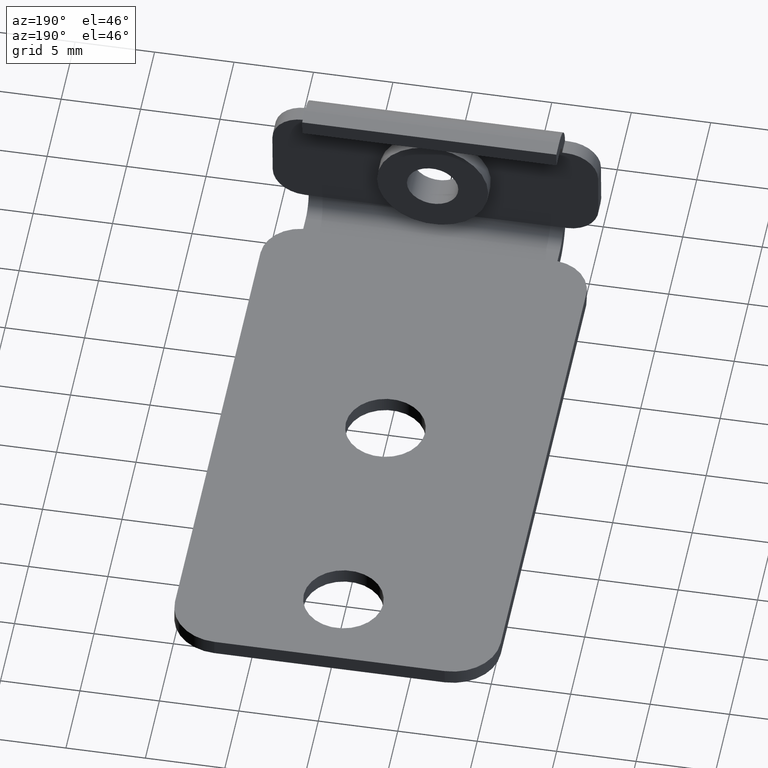
[diagram: clean part render]
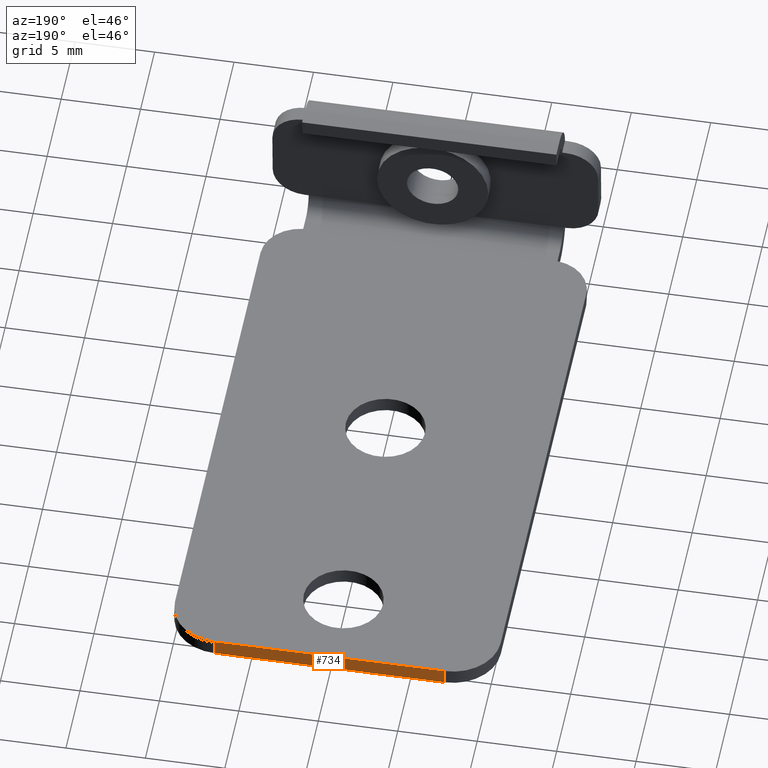
[diagram: same view with one face highlighted and labeled with its STEP entity id]
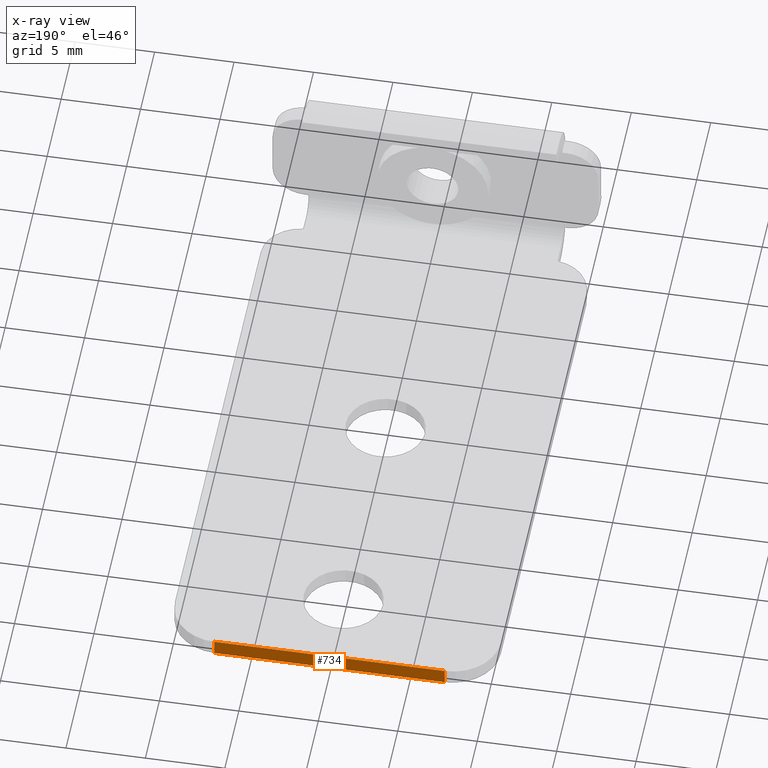
[diagram: x-ray of the same camera — body ghosted, the highlighted face saturated]
A machine part, auxiliary view. The second image highlights one B-rep face of the part: STEP entity #734.
The next image is the same camera in x-ray: the body ghosted, the highlighted face saturated — about 0% of this face is hidden behind the body in this view.
In plain terms, the highlighted planar face has unit normal (0, 1, 0).
Its self-contained STEP definition (entity closure, byte-faithful):
#45=PLANE('',#832);
#86=FACE_OUTER_BOUND('',#132,.T.);
#132=EDGE_LOOP('',(#656,#657,#658,#659));
#191=LINE('',#1224,#259);
#202=LINE('',#1263,#270);
#203=LINE('',#1266,#271);
#204=LINE('',#1267,#272);
#259=VECTOR('',#1002,10.);
#270=VECTOR('',#1045,10.);
#271=VECTOR('',#1048,10.);
#272=VECTOR('',#1049,10.);
#356=VERTEX_POINT('',#1221);
#357=VERTEX_POINT('',#1223);
#369=VERTEX_POINT('',#1261);
#370=VERTEX_POINT('',#1265);
#449=EDGE_CURVE('',#356,#357,#191,.T.);
#469=EDGE_CURVE('',#369,#357,#202,.T.);
#470=EDGE_CURVE('',#369,#370,#203,.T.);
#471=EDGE_CURVE('',#370,#356,#204,.T.);
#656=ORIENTED_EDGE('',*,*,#470,.F.);
#657=ORIENTED_EDGE('',*,*,#469,.T.);
#658=ORIENTED_EDGE('',*,*,#449,.F.);
#659=ORIENTED_EDGE('',*,*,#471,.F.);
#734=ADVANCED_FACE('',(#86),#45,.T.);
#832=AXIS2_PLACEMENT_3D('',#1264,#1046,#1047);
#1002=DIRECTION('',(1.,0.,0.));
#1045=DIRECTION('',(0.,0.,-1.));
#1046=DIRECTION('center_axis',(0.,1.,0.));
#1047=DIRECTION('ref_axis',(1.,0.,0.));
#1048=DIRECTION('',(-1.,0.,0.));
#1049=DIRECTION('',(0.,0.,-1.));
#1221=CARTESIAN_POINT('',(-7.25,36.,-1.));
#1223=CARTESIAN_POINT('',(7.25,36.,-1.));
#1224=CARTESIAN_POINT('',(7.25,36.,-1.));
#1261=CARTESIAN_POINT('',(7.25,36.,0.));
#1263=CARTESIAN_POINT('',(7.25,36.,0.));
#1264=CARTESIAN_POINT('Origin',(-7.25,36.,0.));
#1265=CARTESIAN_POINT('',(-7.25,36.,0.));
#1266=CARTESIAN_POINT('',(7.25,36.,0.));
#1267=CARTESIAN_POINT('',(-7.25,36.,0.));